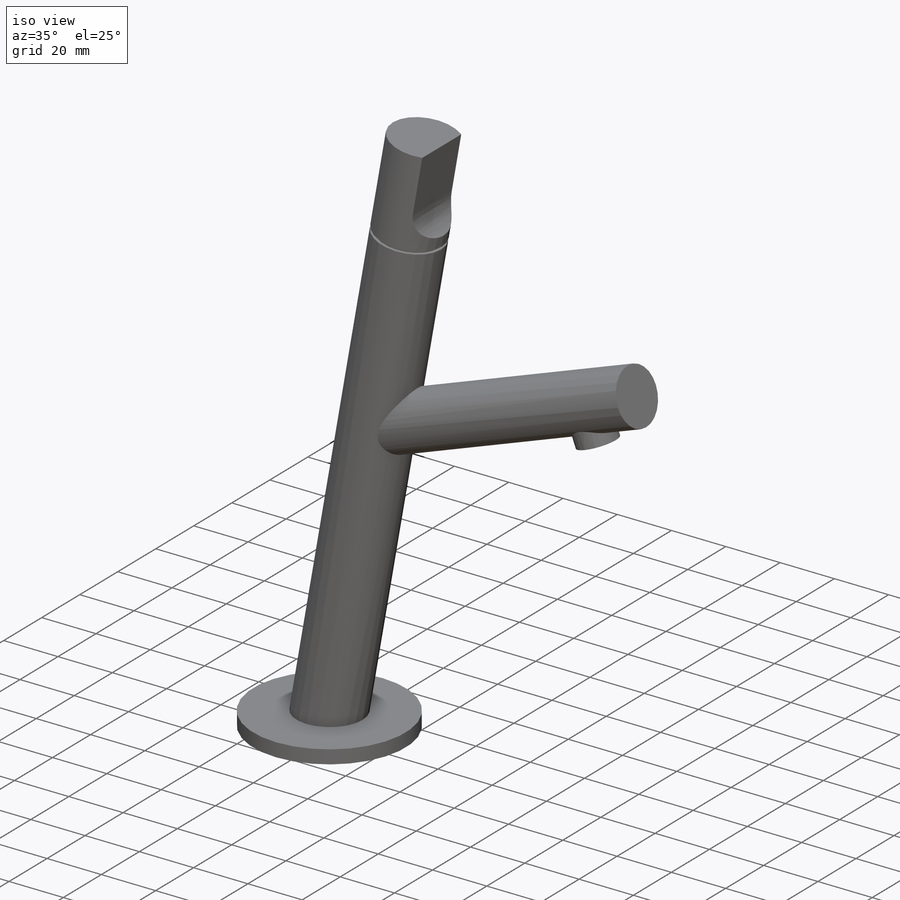
[diagram: iso view]
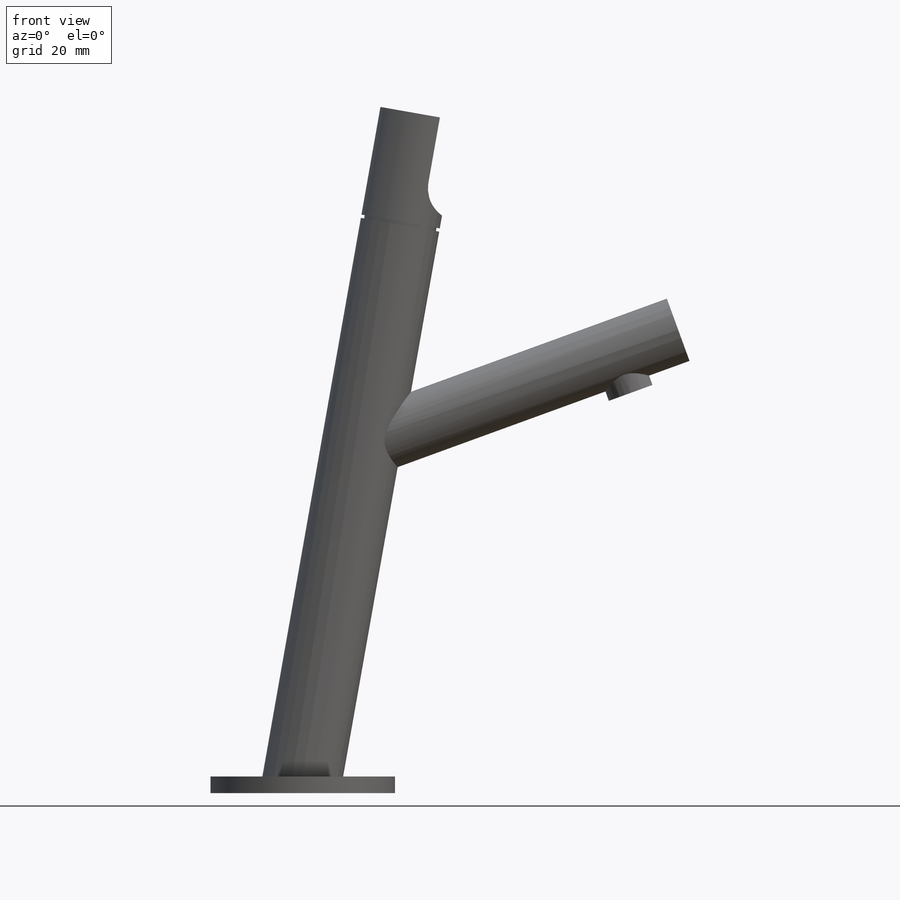
[diagram: front view]
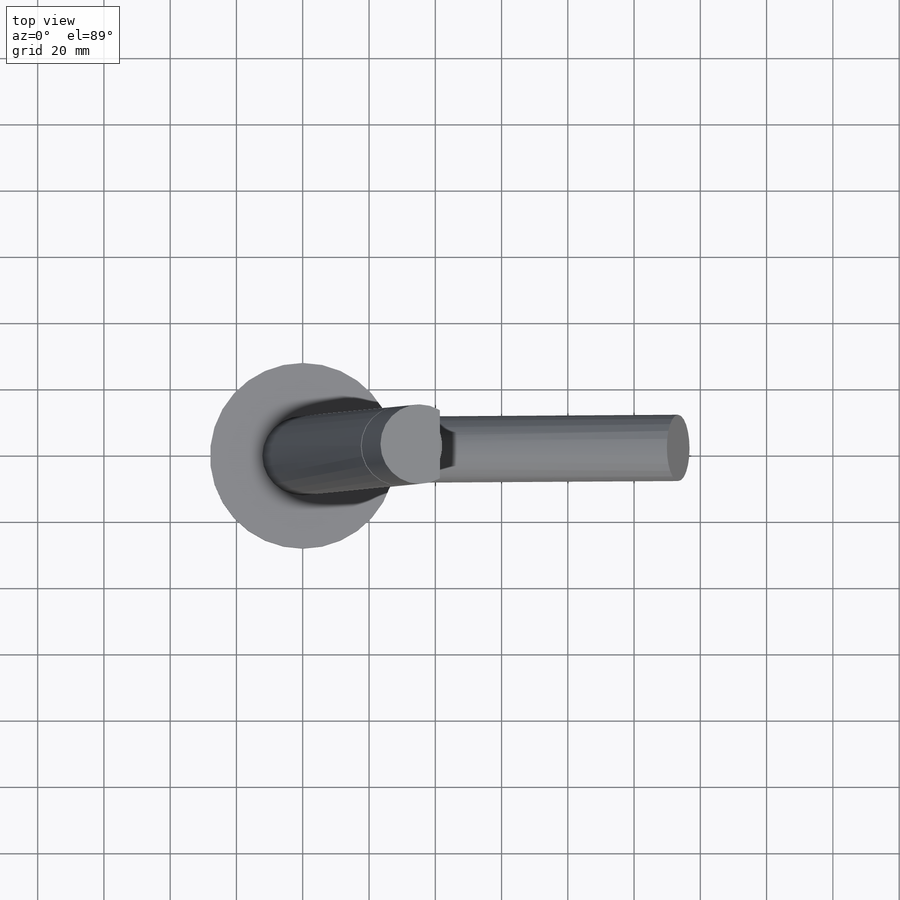
[diagram: top view]
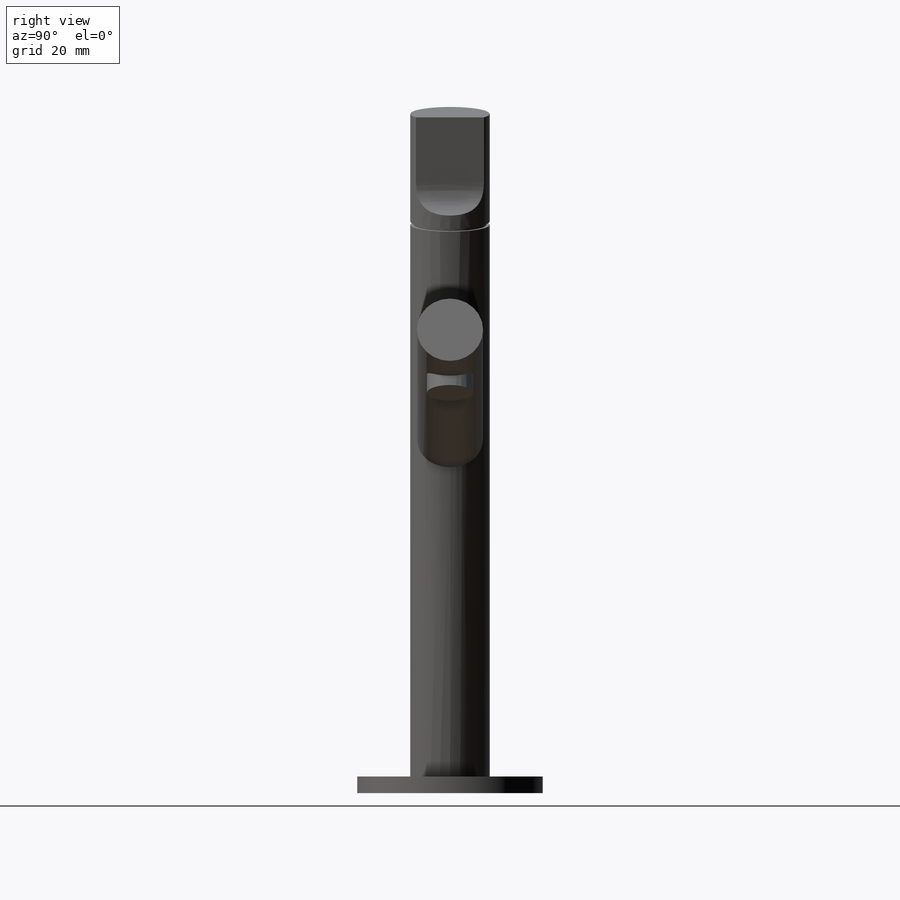
[diagram: right view]
SOLIDWORKS PART (.sldprt)
format: sldprt  version: not decoded by parser v0  size: 351,744 bytes
history: native  units: mm
features: sketch x6, fillet x3, material x1, extrude x1, revolve x1, cut_extrude x1 (+11 scaffold rows collapsed)
feature tree (24):
  scaffold x11  (default folders/planes/origin — collapsed)
  material  "Chrome Stainless Steel"
  sketch  "Sketch1"  dims[D1=56.0mm]
  extrude  "alap"  Depth=5mm
  sketch  "kozep"  dims[c1.D1=56.0mm c2.D1=80.0deg c2.D2=200.0mm c2.D3=200.0mm c3.D3=120.0deg c3.D4=13.0mm c3.D5=20.0mm c3.D6=~5.472322mm c4.D6=90.0deg c5.D6=16.0mm c6.D6=30.0deg c7.D6=~81.822541mm]
  sketch  "Sketch7"  dims[c1.D1=12.0mm c1.D2=56.0mm c2.D2=80.0deg c3.D2=1.0mm c3.D3=1.0mm c3.D4=33.0mm]
  revolve  "henger1"  Angle=360deg
  sketch  "Sketch8"  dims[c1.D1=12.0mm c1.D2=21.0mm c2.D1=~11.541607mm c2.D2=~20.513129mm]
  cut_extrude  "tekero"  Depth=30mm
  fillet  "tekero lezaro"  Radius=10mm
  sketch  "Sketch10"  dims[c1.D1=~99.550244mm c1.D2=~8.800513mm c2.D1=10.0mm]
  fillet  "henger2"  [1 undecoded]
  sketch  "Sketch11"  dims[D1=7.0mm]
  fillet  "kifolyo"  [1 undecoded]
decode coverage: 10 of 12 modeling features carry decoded parameters
note: ~ marks probable driven/reference dimensions
note: 2 parameter values undecoded
note: suppression state not decoded; provenance and decode notes live in map.json
